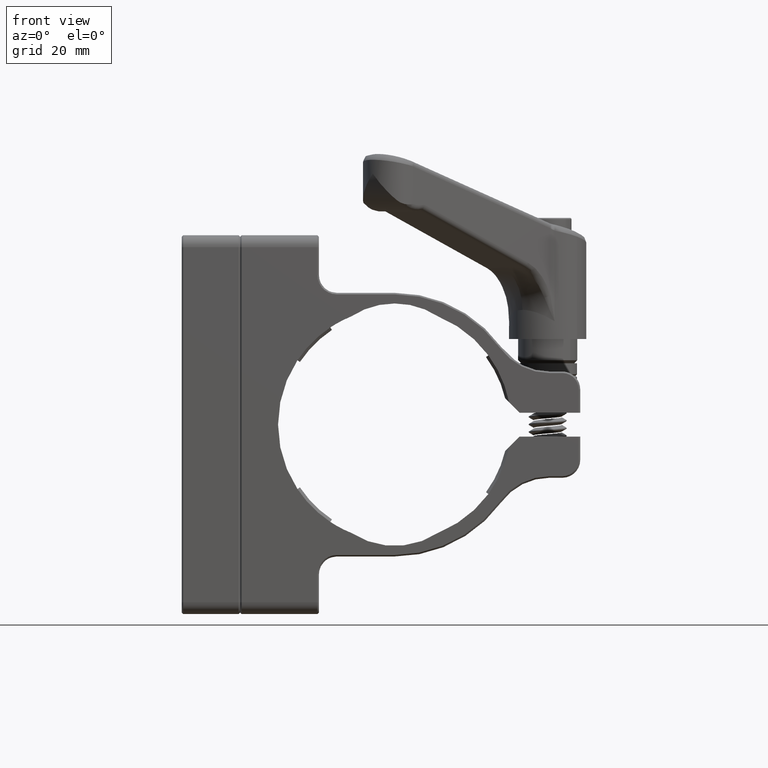
[diagram: clean part render]
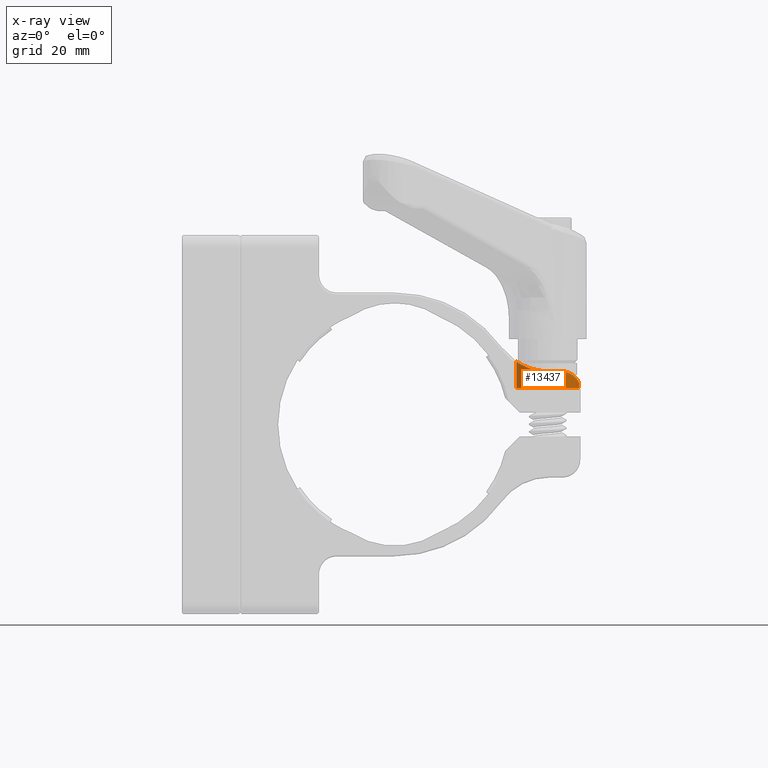
[diagram: x-ray — body ghosted, one internal face saturated and labeled with its STEP entity id]
A machine part, front view, then the same camera in x-ray: the body is ghosted and one INTERNAL B-rep face — a face not visible from any outside direction — is saturated and labeled: STEP entity #13437.
In plain terms, the highlighted cylindrical surface (edge-blend (fillet) strip) has radius 5.25 mm, axis along (-0, -0, 1).
Its self-contained STEP definition (entity closure, byte-faithful):
#178 = CARTESIAN_POINT ( 'NONE',  ( 49.36442381506522992, -2.864727007294544769, 8.189265102434228893 ) ) ;
#362 = CARTESIAN_POINT ( 'NONE',  ( 39.74655497655670899, -0.7239714003640731477, 10.55021759771973855 ) ) ;
#444 = CARTESIAN_POINT ( 'NONE',  ( 42.78931385805432797, -4.783950305385013202, 9.206111798459289730 ) ) ;
#517 = CARTESIAN_POINT ( 'NONE',  ( 41.09206956344226569, -3.568172151894943411, 9.801270338924362946 ) ) ;
#600 = CARTESIAN_POINT ( 'NONE',  ( 40.46436117586630843, -2.735372802369532508, 10.11662562504119833 ) ) ;
#641 = ORIENTED_EDGE ( 'NONE', *, *, #708, .F. ) ;
#708 = EDGE_CURVE ( 'NONE', #11360, #1871, #15023, .T. ) ;
#721 = CARTESIAN_POINT ( 'NONE',  ( 39.70900000000000318, -1.772014056846848250E-15, 22.09999999999999432 ) ) ;
#871 = EDGE_CURVE ( 'NONE', #8915, #1871, #10098, .T. ) ;
#1486 = EDGE_CURVE ( 'NONE', #8354, #13423, #9063, .T. ) ;
#1582 = EDGE_LOOP ( 'NONE', ( #12570, #1725, #7215, #641, #2928, #10009 ) ) ;
#1725 = ORIENTED_EDGE ( 'NONE', *, *, #15711, .T. ) ;
#1739 = CARTESIAN_POINT ( 'NONE',  ( 40.28921706914746892, -2.425030777855849973, 10.21571801669135304 ) ) ;
#1807 = CARTESIAN_POINT ( 'NONE',  ( 43.80257059433806432, -5.133670133659968826, 8.998859847470724205 ) ) ;
#1871 = VERTEX_POINT ( 'NONE', #12337 ) ;
#2226 = CARTESIAN_POINT ( 'NONE',  ( 50.20899999999999608, -2.414943901299647394E-15, 7.002678556969342161 ) ) ;
#2721 = DIRECTION ( 'NONE',  ( -0.000000000000000000, -0.000000000000000000, 1.000000000000000000 ) ) ;
#2928 = ORIENTED_EDGE ( 'NONE', *, *, #7243, .T. ) ;
#2942 = CARTESIAN_POINT ( 'NONE',  ( 42.47258211333254962, -4.627250217116490205, 9.292069287617954032 ) ) ;
#3019 = CARTESIAN_POINT ( 'NONE',  ( 43.45733328531196804, -5.043378507085522600, 9.056026858960358084 ) ) ;
#3175 = CARTESIAN_POINT ( 'NONE',  ( 39.70899999999983265, -9.371957810539342369E-13, 10.57556408764808609 ) ) ;
#3583 = CARTESIAN_POINT ( 'NONE',  ( 50.20899999999999608, -2.414943901299647394E-15, 7.002678556969342161 ) ) ;
#3821 = CARTESIAN_POINT ( 'NONE',  ( 47.41899999999999693, -4.637984476041292048, 8.899999999999998579 ) ) ;
#4080 = CARTESIAN_POINT ( 'NONE',  ( 44.51358810771545649, -5.243425050262803033, 8.920748272056156836 ) ) ;
#4237 = CARTESIAN_POINT ( 'NONE',  ( 41.59994905207580729, -4.049911139270173877, 9.585898081155500350 ) ) ;
#5129 = CARTESIAN_POINT ( 'NONE',  ( 49.88590404518284060, -1.869600852337222507, 7.624834167350664771 ) ) ;
#5650 = EDGE_CURVE ( 'NONE', #13423, #13152, #11333, .T. ) ;
#6103 = CARTESIAN_POINT ( 'NONE',  ( 47.64464683175325632, -4.518300762354781952, 8.900000000000003908 ) ) ;
#6277 = DIRECTION ( 'NONE',  ( -1.000000000000000000, 0.000000000000000000, 0.000000000000000000 ) ) ;
#6348 = CARTESIAN_POINT ( 'NONE',  ( 47.85653539923976751, -4.384983293954651806, 8.874963495218759491 ) ) ;
#6363 = CARTESIAN_POINT ( 'NONE',  ( 44.95899999999999608, -2.414953626399208567E-15, 8.899999999999998579 ) ) ;
#6531 = CARTESIAN_POINT ( 'NONE',  ( 40.86552050170978134, -3.305672113871910955, 9.909648366165123790 ) ) ;
#6729 = AXIS2_PLACEMENT_3D ( 'NONE', #6363, #8806, #6277 ) ;
#6760 = VECTOR ( 'NONE', #8102, 1000.000000000000000 ) ;
#7215 = ORIENTED_EDGE ( 'NONE', *, *, #871, .T. ) ;
#7243 = EDGE_CURVE ( 'NONE', #11360, #13152, #7861, .T. ) ;
#7244 = CARTESIAN_POINT ( 'NONE',  ( 50.12187427559679520, -0.9824781293013078454, 7.204386126827124315 ) ) ;
#7861 = B_SPLINE_CURVE_WITH_KNOTS ( 'NONE', 3,
 ( #3821, #6103, #6348, #13729, #11061, #12521, #15937, #11304, #178, #8630, #5129, #10069, #7244, #13575, #12200, #9767, #14713, #3583 ),
 .UNSPECIFIED., .F., .F.,
 ( 4, 2, 2, 2, 2, 2, 2, 2, 4 ),
 ( 0.000000000000000000, 0.0007534158065576359014, 0.001506831613115271803, 0.002260247419672907921, 0.003013663226230543606, 0.004520494839345813240, 0.005273910645903449358, 0.005650618549182264382, 0.006027326452461080272 ),
 .UNSPECIFIED. ) ;
#8048 = CARTESIAN_POINT ( 'NONE',  ( 50.20899999999999608, -2.414953626399208567E-15, 6.099999999999994316 ) ) ;
#8102 = DIRECTION ( 'NONE',  ( -0.000000000000000000, -0.000000000000000000, 1.000000000000000000 ) ) ;
#8134 = CARTESIAN_POINT ( 'NONE',  ( 39.85817511457427287, -1.255742774601024792, 10.47805658933978989 ) ) ;
#8354 = VERTEX_POINT ( 'NONE', #11269 ) ;
#8622 = DIRECTION ( 'NONE',  ( 1.000000000000000000, 0.000000000000000000, 0.000000000000000000 ) ) ;
#8630 = CARTESIAN_POINT ( 'NONE',  ( 49.71187618597888758, -2.276037615555026150, 7.860702148097876929 ) ) ;
#8806 = DIRECTION ( 'NONE',  ( 0.000000000000000000, 0.000000000000000000, -1.000000000000000000 ) ) ;
#8915 = VERTEX_POINT ( 'NONE', #8941 ) ;
#8919 = VECTOR ( 'NONE', #2721, 1000.000000000000000 ) ;
#8941 = CARTESIAN_POINT ( 'NONE',  ( 39.70899999999983265, -9.371957810539342369E-13, 10.57556408764808609 ) ) ;
#9047 = CARTESIAN_POINT ( 'NONE',  ( 44.88272342153691596, -5.262324786329165782, 8.900000000000002132 ) ) ;
#9063 = CIRCLE ( 'NONE', #12420, 5.249999999999997335 ) ;
#9117 = DIRECTION ( 'NONE',  ( -0.000000000000000000, -0.000000000000000000, 1.000000000000000000 ) ) ;
#9123 = CARTESIAN_POINT ( 'NONE',  ( 40.01405842503028509, -1.772594495790033031, 10.38013888860501233 ) ) ;
#9202 = CARTESIAN_POINT ( 'NONE',  ( 42.31966842448716193, -4.541677942447254424, 9.337745669025604656 ) ) ;
#9767 = CARTESIAN_POINT ( 'NONE',  ( 50.20426630552186964, -0.2552753231147990576, 7.014833949428127546 ) ) ;
#10009 = ORIENTED_EDGE ( 'NONE', *, *, #5650, .F. ) ;
#10069 = CARTESIAN_POINT ( 'NONE',  ( 50.07212654797758233, -1.212542621412391775, 7.305733487780125657 ) ) ;
#10098 = B_SPLINE_CURVE_WITH_KNOTS ( 'NONE', 3,
 ( #3175, #15210, #362, #8134, #15433, #9123, #13079, #1739, #600, #6531, #517, #4237, #11484, #9202, #2942, #444, #11634, #3019, #1807, #4080, #9047, #11712 ),
 .UNSPECIFIED., .F., .F.,
 ( 4, 2, 2, 2, 2, 2, 2, 2, 2, 2, 4 ),
 ( 0.008689491924970800182, 0.009775238744636895877, 0.01031811215446994112, 0.01086098556430298637, 0.01194673238396908380, 0.01303247920363518123, 0.01411822602330127692, 0.01466109943313432737, 0.01520397284296737435, 0.01628971966263347351, 0.01737546648229957094 ),
 .UNSPECIFIED. ) ;
#10981 = CARTESIAN_POINT ( 'NONE',  ( 44.95899999999999608, -2.414953626399208567E-15, 6.099999999999994316 ) ) ;
#11061 = CARTESIAN_POINT ( 'NONE',  ( 48.44579265554757086, -3.932277339373198455, 8.725103072405671512 ) ) ;
#11269 = CARTESIAN_POINT ( 'NONE',  ( 39.70900000000000318, -1.772014056846848250E-15, 6.099999999999994316 ) ) ;
#11304 = CARTESIAN_POINT ( 'NONE',  ( 49.23432031234238337, -3.055812259829318034, 8.294647953224865589 ) ) ;
#11333 = LINE ( 'NONE', #13927, #8919 ) ;
#11360 = VERTEX_POINT ( 'NONE', #13700 ) ;
#11484 = CARTESIAN_POINT ( 'NONE',  ( 41.87632496598991594, -4.263948103382035448, 9.481180721267328693 ) ) ;
#11634 = CARTESIAN_POINT ( 'NONE',  ( 42.95427004133374282, -4.855471163003596935, 9.165595692767874780 ) ) ;
#11712 = CARTESIAN_POINT ( 'NONE',  ( 45.25009797252760535, -5.241923499097475236, 8.899999999999998579 ) ) ;
#12200 = CARTESIAN_POINT ( 'NONE',  ( 50.18628198284341124, -0.5034949635051844119, 7.058755174703963853 ) ) ;
#12279 = DIRECTION ( 'NONE',  ( -0.000000000000000000, -0.000000000000000000, 1.000000000000000000 ) ) ;
#12337 = CARTESIAN_POINT ( 'NONE',  ( 45.25009797252760535, -5.241923499097475236, 8.899999999999998579 ) ) ;
#12420 = AXIS2_PLACEMENT_3D ( 'NONE', #10981, #12279, #8622 ) ;
#12521 = CARTESIAN_POINT ( 'NONE',  ( 48.79123974698701005, -3.596451948537831012, 8.574409954362176123 ) ) ;
#12570 = ORIENTED_EDGE ( 'NONE', *, *, #1486, .F. ) ;
#12770 = CYLINDRICAL_SURFACE ( 'NONE', #13216, 5.249999999999997335 ) ;
#12971 = LINE ( 'NONE', #721, #6760 ) ;
#13071 = CARTESIAN_POINT ( 'NONE',  ( 44.95899999999999608, -2.414953626399208567E-15, 22.09999999999999432 ) ) ;
#13079 = CARTESIAN_POINT ( 'NONE',  ( 40.07687676251266140, -1.938726235881054638, 10.34169669046272411 ) ) ;
#13152 = VERTEX_POINT ( 'NONE', #2226 ) ;
#13216 = AXIS2_PLACEMENT_3D ( 'NONE', #13071, #9117, #14061 ) ;
#13423 = VERTEX_POINT ( 'NONE', #8048 ) ;
#13437 = ADVANCED_FACE ( 'NONE', ( #14297 ), #12770, .F. ) ;
#13575 = CARTESIAN_POINT ( 'NONE',  ( 50.17308375678788934, -0.6247712319275129378, 7.090277610468474379 ) ) ;
#13700 = CARTESIAN_POINT ( 'NONE',  ( 47.41899999999999693, -4.637984476041292048, 8.899999999999998579 ) ) ;
#13729 = CARTESIAN_POINT ( 'NONE',  ( 48.25631485323879133, -4.092860202440321338, 8.788035467236831266 ) ) ;
#13927 = CARTESIAN_POINT ( 'NONE',  ( 50.20899999999999608, -2.414953626399208567E-15, 22.09999999999999432 ) ) ;
#14061 = DIRECTION ( 'NONE',  ( 1.000000000000000000, 0.000000000000000000, 0.000000000000000000 ) ) ;
#14297 = FACE_OUTER_BOUND ( 'NONE', #1582, .T. ) ;
#14713 = CARTESIAN_POINT ( 'NONE',  ( 50.20899999999999608, -0.1267517008086251618, 7.002678556969343049 ) ) ;
#15023 = CIRCLE ( 'NONE', #6729, 5.249999999999997335 ) ;
#15210 = CARTESIAN_POINT ( 'NONE',  ( 39.70900000000006713, -0.3645515378605337919, 10.57556408764826550 ) ) ;
#15433 = CARTESIAN_POINT ( 'NONE',  ( 39.90481212379908982, -1.431685488657616023, 10.44825090908401322 ) ) ;
#15711 = EDGE_CURVE ( 'NONE', #8354, #8915, #12971, .T. ) ;
#15937 = CARTESIAN_POINT ( 'NONE',  ( 48.94802652205813587, -3.421113816692928911, 8.486852247641845537 ) ) ;